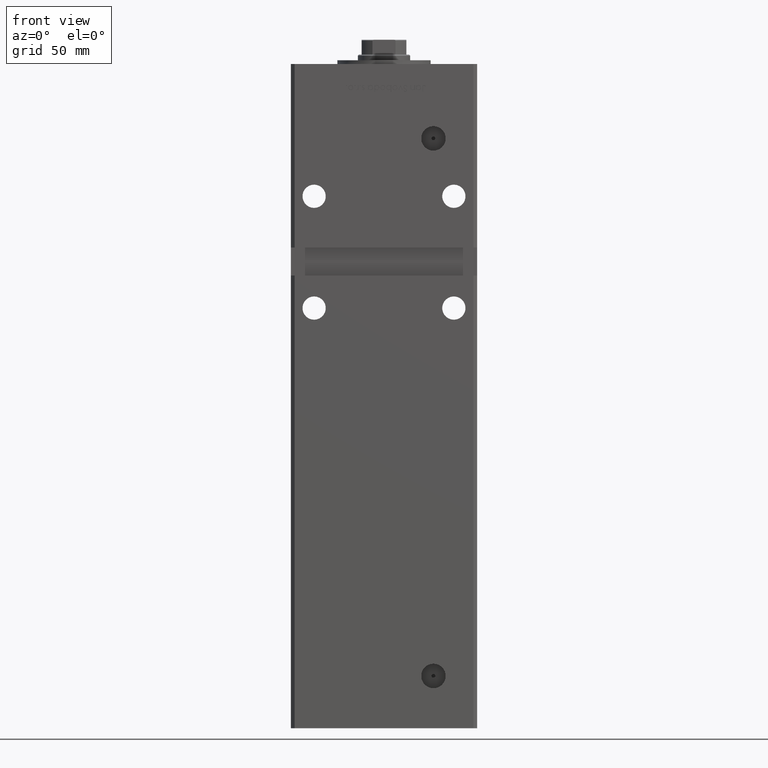
[diagram: clean part render]
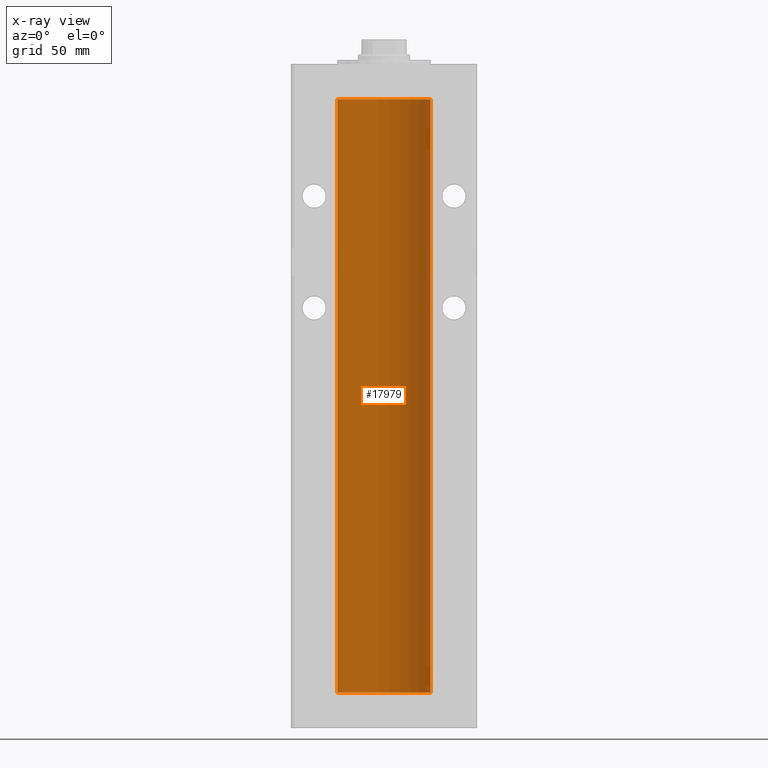
[diagram: x-ray — body ghosted, one internal face saturated and labeled with its STEP entity id]
A machine part, front view, then the same camera in x-ray: the body is ghosted and one INTERNAL B-rep face — a face not visible from any outside direction — is saturated and labeled: STEP entity #17979.
In plain terms, the highlighted cylindrical surface (partial cylindrical patch) has radius 25 mm, axis along (-0, -0, -1).
Its self-contained STEP definition (entity closure, byte-faithful):
#1378 = DIRECTION ( 'NONE',  ( -0.000000000000000000, 0.000000000000000000, 1.000000000000000000 ) ) ;
#1905 = VERTEX_POINT ( 'NONE', #38072 ) ;
#2004 = ORIENTED_EDGE ( 'NONE', *, *, #14140, .T. ) ;
#4934 = DIRECTION ( 'NONE',  ( -1.000000000000000000, 0.000000000000000000, 0.000000000000000000 ) ) ;
#7597 = EDGE_CURVE ( 'NONE', #51109, #12501, #9092, .T. ) ;
#8925 = EDGE_CURVE ( 'NONE', #1905, #46423, #49505, .T. ) ;
#9092 = CIRCLE ( 'NONE', #10800, 25.00000000000000000 ) ;
#10800 = AXIS2_PLACEMENT_3D ( 'NONE', #39565, #35014, #32033 ) ;
#11113 = LINE ( 'NONE', #26722, #36758 ) ;
#12034 = DIRECTION ( 'NONE',  ( -0.000000000000000000, -0.000000000000000000, -1.000000000000000000 ) ) ;
#12501 = VERTEX_POINT ( 'NONE', #19714 ) ;
#12967 = DIRECTION ( 'NONE',  ( 1.000000000000000000, 0.000000000000000000, 0.000000000000000000 ) ) ;
#13591 = EDGE_CURVE ( 'NONE', #1905, #51109, #11113, .T. ) ;
#14049 = CYLINDRICAL_SURFACE ( 'NONE', #21856, 25.00000000000000000 ) ;
#14140 = EDGE_CURVE ( 'NONE', #46423, #12501, #44818, .T. ) ;
#17979 = ADVANCED_FACE ( 'NONE', ( #42024 ), #14049, .F. ) ;
#19714 = CARTESIAN_POINT ( 'NONE',  ( -25.00000000000000000, 0.000000000000000000, 0.000000000000000000 ) ) ;
#21820 = CARTESIAN_POINT ( 'NONE',  ( 0.000000000000000000, 0.000000000000000000, 318.5000000000000000 ) ) ;
#21856 = AXIS2_PLACEMENT_3D ( 'NONE', #21857, #38762, #4934 ) ;
#21857 = CARTESIAN_POINT ( 'NONE',  ( 0.000000000000000000, 0.000000000000000000, 318.5000000000000000 ) ) ;
#24668 = CARTESIAN_POINT ( 'NONE',  ( -25.00000000000000000, 0.000000000000000000, 318.5000000000000000 ) ) ;
#26528 = CARTESIAN_POINT ( 'NONE',  ( 25.00000000000000000, 3.061616997868383043E-15, 0.000000000000000000 ) ) ;
#26722 = CARTESIAN_POINT ( 'NONE',  ( 25.00000000000000000, 3.061616997868383043E-15, 318.5000000000000000 ) ) ;
#32033 = DIRECTION ( 'NONE',  ( 1.000000000000000000, 0.000000000000000000, 0.000000000000000000 ) ) ;
#33471 = ORIENTED_EDGE ( 'NONE', *, *, #8925, .T. ) ;
#35014 = DIRECTION ( 'NONE',  ( -0.000000000000000000, 0.000000000000000000, 1.000000000000000000 ) ) ;
#36758 = VECTOR ( 'NONE', #39346, 1000.000000000000000 ) ;
#38072 = CARTESIAN_POINT ( 'NONE',  ( 25.00000000000000000, 3.061616997868383043E-15, 318.5000000000000000 ) ) ;
#38762 = DIRECTION ( 'NONE',  ( -0.000000000000000000, -0.000000000000000000, -1.000000000000000000 ) ) ;
#38934 = EDGE_LOOP ( 'NONE', ( #45269, #33471, #2004, #45370 ) ) ;
#39160 = AXIS2_PLACEMENT_3D ( 'NONE', #21820, #1378, #12967 ) ;
#39346 = DIRECTION ( 'NONE',  ( -0.000000000000000000, -0.000000000000000000, -1.000000000000000000 ) ) ;
#39565 = CARTESIAN_POINT ( 'NONE',  ( 0.000000000000000000, 0.000000000000000000, 0.000000000000000000 ) ) ;
#40721 = CARTESIAN_POINT ( 'NONE',  ( -25.00000000000000000, 0.000000000000000000, 318.5000000000000000 ) ) ;
#42024 = FACE_OUTER_BOUND ( 'NONE', #38934, .T. ) ;
#42334 = VECTOR ( 'NONE', #12034, 1000.000000000000000 ) ;
#44818 = LINE ( 'NONE', #24668, #42334 ) ;
#45269 = ORIENTED_EDGE ( 'NONE', *, *, #13591, .F. ) ;
#45370 = ORIENTED_EDGE ( 'NONE', *, *, #7597, .F. ) ;
#46423 = VERTEX_POINT ( 'NONE', #40721 ) ;
#49505 = CIRCLE ( 'NONE', #39160, 25.00000000000000000 ) ;
#51109 = VERTEX_POINT ( 'NONE', #26528 ) ;